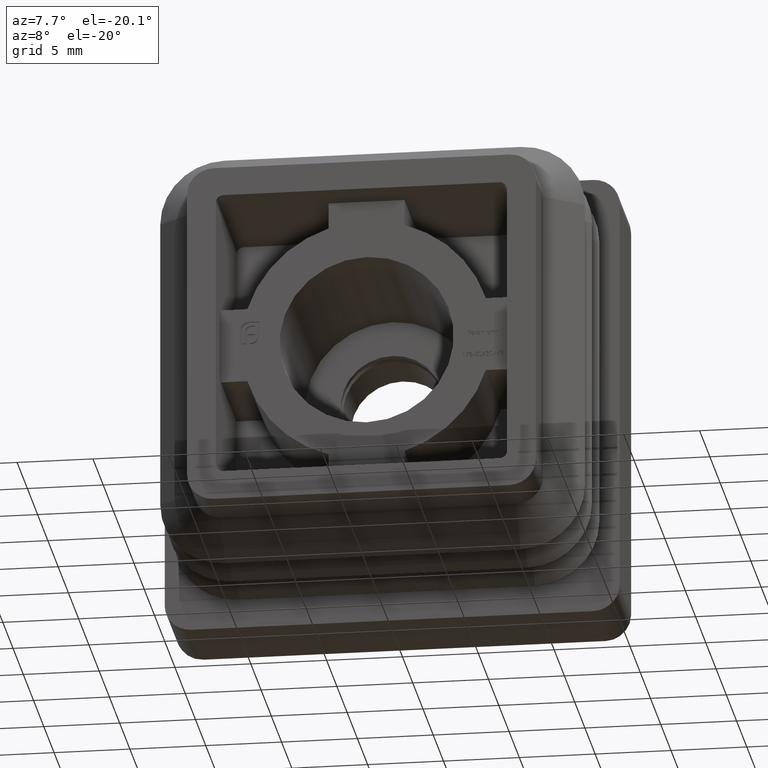
[diagram: clean part render]
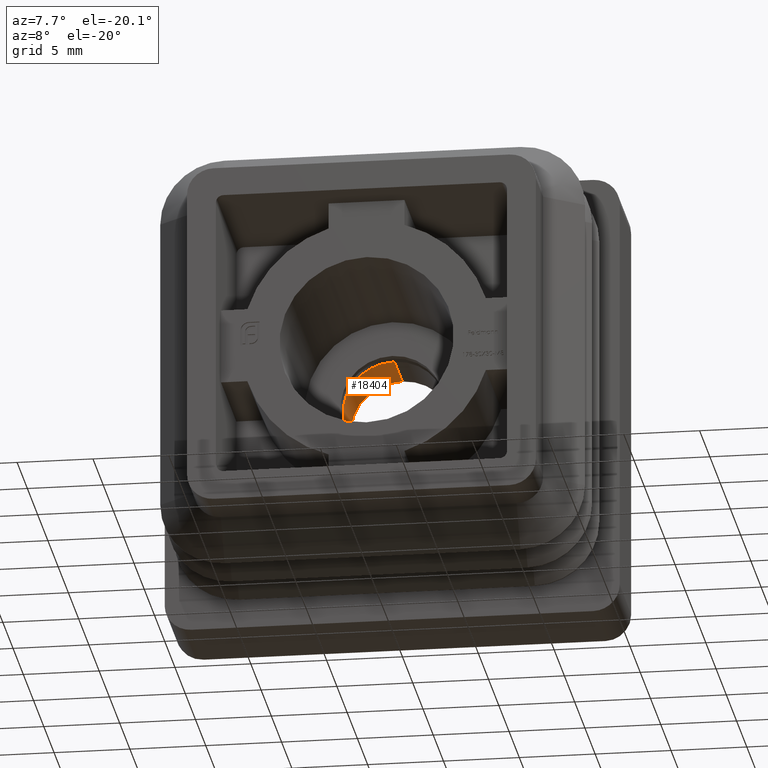
[diagram: same view with one face highlighted and labeled with its STEP entity id]
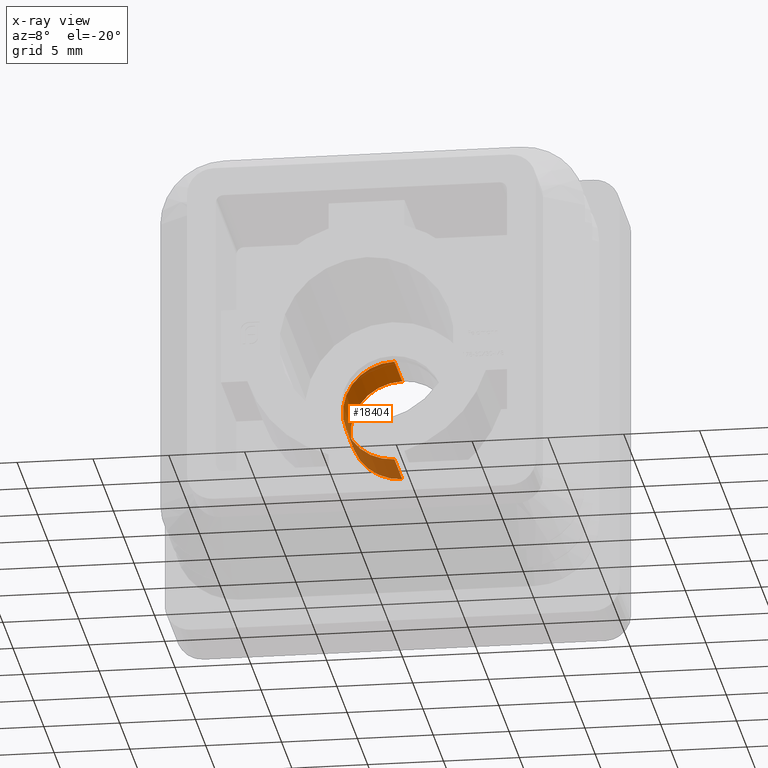
[diagram: x-ray of the same camera — body ghosted, the highlighted face saturated]
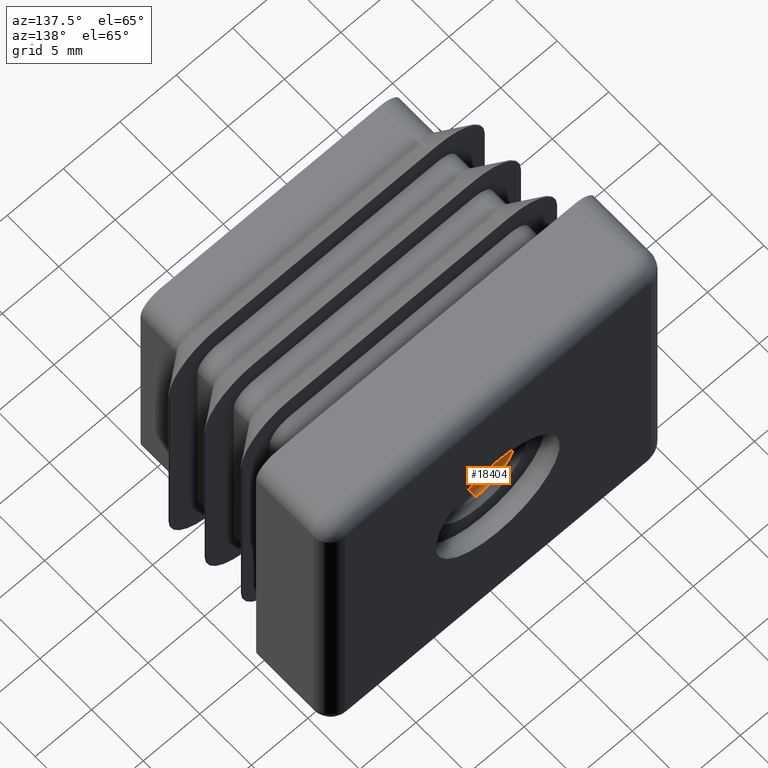
[diagram: same view with one face highlighted and labeled with its STEP entity id]
A machine part, auxiliary view. The second image highlights one B-rep face of the part: STEP entity #18404.
The next image is the same camera in x-ray: the body ghosted, the highlighted face saturated — about 37% of this face is hidden behind the body in this view.
A second angle (auxiliary view) of the same face is appended — the face is thin or edge-on in the first view.
In plain terms, the highlighted cylindrical surface (partial cylindrical patch) has radius 3.4 mm, axis along (-0, 1, -0).
Its self-contained STEP definition (entity closure, byte-faithful):
#504 = DIRECTION ( 'NONE',  ( -0.000000000000000000, 1.000000000000000000, -0.000000000000000000 ) ) ;
#735 = ORIENTED_EDGE ( 'NONE', *, *, #18406, .T. ) ;
#1077 = AXIS2_PLACEMENT_3D ( 'NONE', #15812, #504, #3718 ) ;
#1808 = VERTEX_POINT ( 'NONE', #12747 ) ;
#1975 = DIRECTION ( 'NONE',  ( -0.000000000000000000, 1.000000000000000000, -0.000000000000000000 ) ) ;
#2028 = ORIENTED_EDGE ( 'NONE', *, *, #15627, .F. ) ;
#2592 = ORIENTED_EDGE ( 'NONE', *, *, #4439, .T. ) ;
#3164 = CIRCLE ( 'NONE', #8872, 3.399999999999995470 ) ;
#3718 = DIRECTION ( 'NONE',  ( 0.000000000000000000, 0.000000000000000000, 1.000000000000000000 ) ) ;
#4053 = FACE_OUTER_BOUND ( 'NONE', #21591, .T. ) ;
#4233 = VERTEX_POINT ( 'NONE', #20310 ) ;
#4390 = DIRECTION ( 'NONE',  ( 0.000000000000000000, 0.000000000000000000, -1.000000000000000000 ) ) ;
#4439 = EDGE_CURVE ( 'NONE', #4233, #13734, #15923, .T. ) ;
#6098 = EDGE_CURVE ( 'NONE', #1808, #7133, #3164, .T. ) ;
#7133 = VERTEX_POINT ( 'NONE', #11430 ) ;
#8872 = AXIS2_PLACEMENT_3D ( 'NONE', #16396, #9508, #4390 ) ;
#9508 = DIRECTION ( 'NONE',  ( 0.000000000000000000, -1.000000000000000000, 0.000000000000000000 ) ) ;
#10331 = DIRECTION ( 'NONE',  ( 0.000000000000000000, 0.000000000000000000, -1.000000000000000000 ) ) ;
#11430 = CARTESIAN_POINT ( 'NONE',  ( 4.163799117100995629E-16, 1.100000000000004530, -3.399999999999995470 ) ) ;
#11864 = VECTOR ( 'NONE', #19547, 1000.000000000000000 ) ;
#12747 = CARTESIAN_POINT ( 'NONE',  ( 0.000000000000000000, 1.100000000000004530, 3.399999999999995470 ) ) ;
#13265 = CYLINDRICAL_SURFACE ( 'NONE', #1077, 3.399999999999995470 ) ;
#13734 = VERTEX_POINT ( 'NONE', #15184 ) ;
#15184 = CARTESIAN_POINT ( 'NONE',  ( 0.000000000000000000, 4.900000000000003020, 3.399999999999995470 ) ) ;
#15627 = EDGE_CURVE ( 'NONE', #1808, #13734, #16039, .T. ) ;
#15812 = CARTESIAN_POINT ( 'NONE',  ( 0.000000000000000000, 5.399999999999999467, 0.000000000000000000 ) ) ;
#15923 = CIRCLE ( 'NONE', #16407, 3.399999999999995470 ) ;
#16039 = LINE ( 'NONE', #18796, #20852 ) ;
#16045 = CARTESIAN_POINT ( 'NONE',  ( 4.163799117100995629E-16, 5.399999999999999467, -3.399999999999995470 ) ) ;
#16396 = CARTESIAN_POINT ( 'NONE',  ( 0.000000000000000000, 1.100000000000004530, 0.000000000000000000 ) ) ;
#16407 = AXIS2_PLACEMENT_3D ( 'NONE', #20505, #18858, #10331 ) ;
#16836 = ORIENTED_EDGE ( 'NONE', *, *, #6098, .T. ) ;
#17305 = LINE ( 'NONE', #16045, #11864 ) ;
#18404 = ADVANCED_FACE ( 'NONE', ( #4053 ), #13265, .F. ) ;
#18406 = EDGE_CURVE ( 'NONE', #7133, #4233, #17305, .T. ) ;
#18796 = CARTESIAN_POINT ( 'NONE',  ( 0.000000000000000000, 5.399999999999999467, 3.399999999999995470 ) ) ;
#18858 = DIRECTION ( 'NONE',  ( 0.000000000000000000, 1.000000000000000000, 0.000000000000000000 ) ) ;
#19547 = DIRECTION ( 'NONE',  ( -0.000000000000000000, 1.000000000000000000, -0.000000000000000000 ) ) ;
#20310 = CARTESIAN_POINT ( 'NONE',  ( 4.163799117100995629E-16, 4.900000000000003020, -3.399999999999995470 ) ) ;
#20505 = CARTESIAN_POINT ( 'NONE',  ( 0.000000000000000000, 4.900000000000003020, 0.000000000000000000 ) ) ;
#20852 = VECTOR ( 'NONE', #1975, 1000.000000000000000 ) ;
#21591 = EDGE_LOOP ( 'NONE', ( #16836, #735, #2592, #2028 ) ) ;